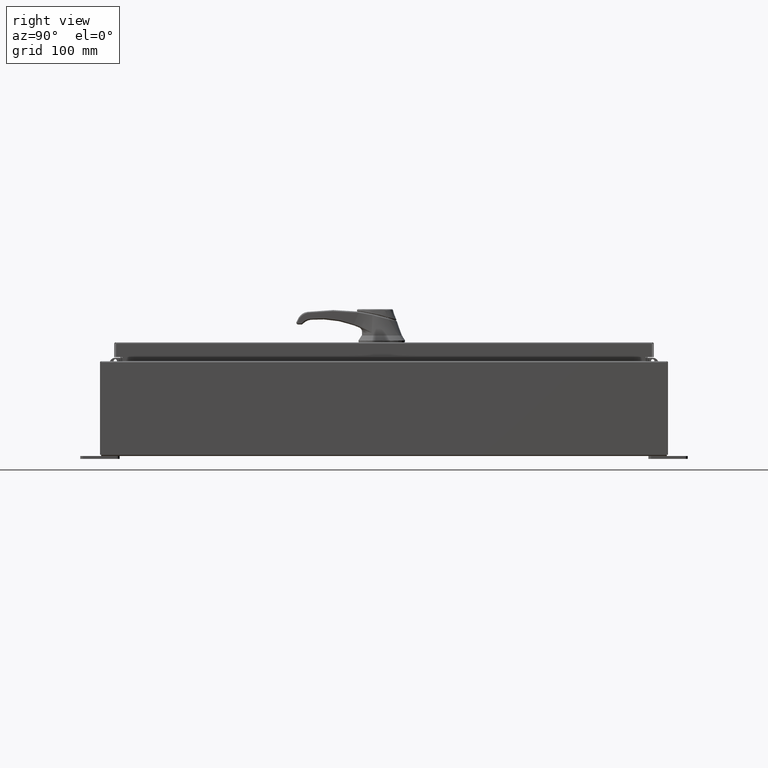
[diagram: clean part render]
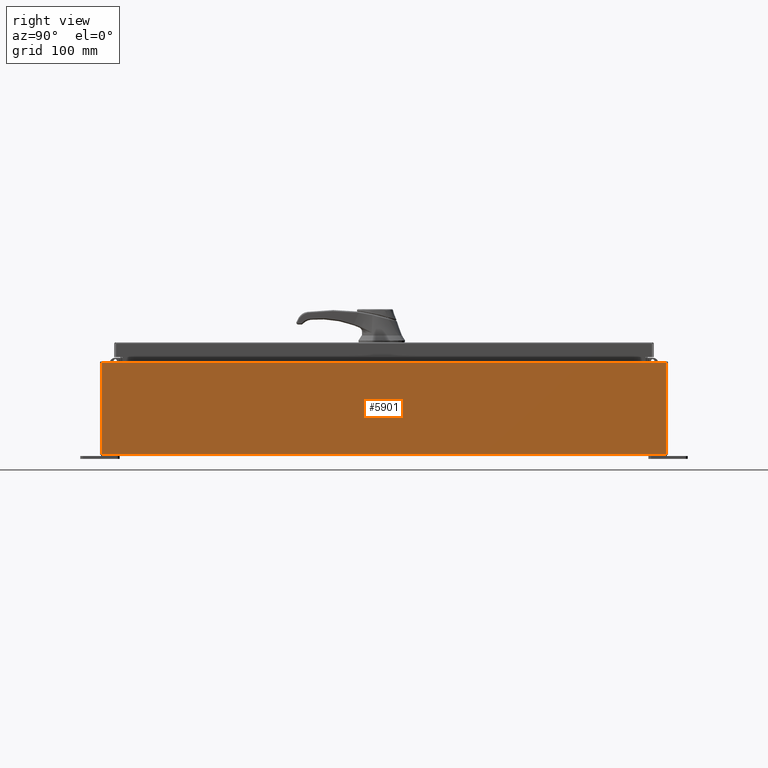
[diagram: same view with one face highlighted and labeled with its STEP entity id]
A machine part, right view. The second image highlights one B-rep face of the part: STEP entity #5901.
In plain terms, the highlighted planar face has unit normal (-1, 0, 0).
Its self-contained STEP definition (entity closure, byte-faithful):
#84 = EDGE_LOOP ( 'NONE', ( #11852, #21715, #12066, #40816 ) ) ;
#1305 = PLANE ( 'NONE',  #26938 ) ;
#4830 = VECTOR ( 'NONE', #52414, 39.37007874015748100 ) ;
#5901 = ADVANCED_FACE ( 'NONE', ( #54404 ), #1305, .F. ) ;
#6109 = CARTESIAN_POINT ( 'NONE',  ( 12.00000000000000200, 17.92529999999999600, -4.009536492811464800E-014 ) ) ;
#10740 = LINE ( 'NONE', #85196, #4830 ) ;
#11852 = ORIENTED_EDGE ( 'NONE', *, *, #35679, .T. ) ;
#12066 = ORIENTED_EDGE ( 'NONE', *, *, #79294, .F. ) ;
#14455 = DIRECTION ( 'NONE',  ( -2.023619111371655800E-031, -1.000000000000000000, -6.096072018129156600E-017 ) ) ;
#16065 = VERTEX_POINT ( 'NONE', #110441 ) ;
#21715 = ORIENTED_EDGE ( 'NONE', *, *, #85199, .T. ) ;
#24214 = CARTESIAN_POINT ( 'NONE',  ( 12.00000000000000200, 17.92529999999999600, 0.01300000000000205000 ) ) ;
#26430 = VECTOR ( 'NONE', #83634, 39.37007874015748100 ) ;
#26938 = AXIS2_PLACEMENT_3D ( 'NONE', #82709, #31239, #105377 ) ;
#31239 = DIRECTION ( 'NONE',  ( -1.000000000000000000, 0.0000000000000000000, 3.319545939341922000E-015 ) ) ;
#35679 = EDGE_CURVE ( 'NONE', #71471, #16065, #105276, .T. ) ;
#36454 = CARTESIAN_POINT ( 'NONE',  ( 12.00000000000000200, -17.92530000000000400, 0.01300000000000095200 ) ) ;
#40816 = ORIENTED_EDGE ( 'NONE', *, *, #54273, .T. ) ;
#52414 = DIRECTION ( 'NONE',  ( -3.319545939341922800E-015, 0.0000000000000000000, -1.000000000000000000 ) ) ;
#54273 = EDGE_CURVE ( 'NONE', #65109, #71471, #87659, .T. ) ;
#54404 = FACE_OUTER_BOUND ( 'NONE', #84, .T. ) ;
#54931 = CARTESIAN_POINT ( 'NONE',  ( 12.00000000000002100, 17.92530000000000000, 5.837600000000001000 ) ) ;
#62338 = VECTOR ( 'NONE', #82598, 39.37007874015748100 ) ;
#65109 = VERTEX_POINT ( 'NONE', #24214 ) ;
#71471 = VERTEX_POINT ( 'NONE', #79192 ) ;
#79192 = CARTESIAN_POINT ( 'NONE',  ( 12.00000000000002100, 17.92530000000000000, 5.837600000000001000 ) ) ;
#79294 = EDGE_CURVE ( 'NONE', #65109, #99630, #88209, .T. ) ;
#82598 = DIRECTION ( 'NONE',  ( 3.319545939341922800E-015, 0.0000000000000000000, 1.000000000000000000 ) ) ;
#82709 = CARTESIAN_POINT ( 'NONE',  ( 12.00000000000000200, 0.0000000000000000000, -4.009536492811464800E-014 ) ) ;
#83634 = DIRECTION ( 'NONE',  ( -0.0000000000000000000, -1.000000000000000000, -0.0000000000000000000 ) ) ;
#85196 = CARTESIAN_POINT ( 'NONE',  ( 12.00000000000000200, -17.92530000000000400, -4.009536492811464800E-014 ) ) ;
#85199 = EDGE_CURVE ( 'NONE', #16065, #99630, #10740, .T. ) ;
#87659 = LINE ( 'NONE', #6109, #62338 ) ;
#88209 = LINE ( 'NONE', #101671, #122482 ) ;
#99630 = VERTEX_POINT ( 'NONE', #36454 ) ;
#101671 = CARTESIAN_POINT ( 'NONE',  ( 12.00000000000000200, -17.92530000000000400, 0.01299999999999986400 ) ) ;
#105276 = LINE ( 'NONE', #54931, #26430 ) ;
#105377 = DIRECTION ( 'NONE',  ( 3.319545939341922000E-015, 0.0000000000000000000, 1.000000000000000000 ) ) ;
#110441 = CARTESIAN_POINT ( 'NONE',  ( 12.00000000000002100, -17.92530000000000000, 5.837600000000001000 ) ) ;
#122482 = VECTOR ( 'NONE', #14455, 39.37007874015748100 ) ;